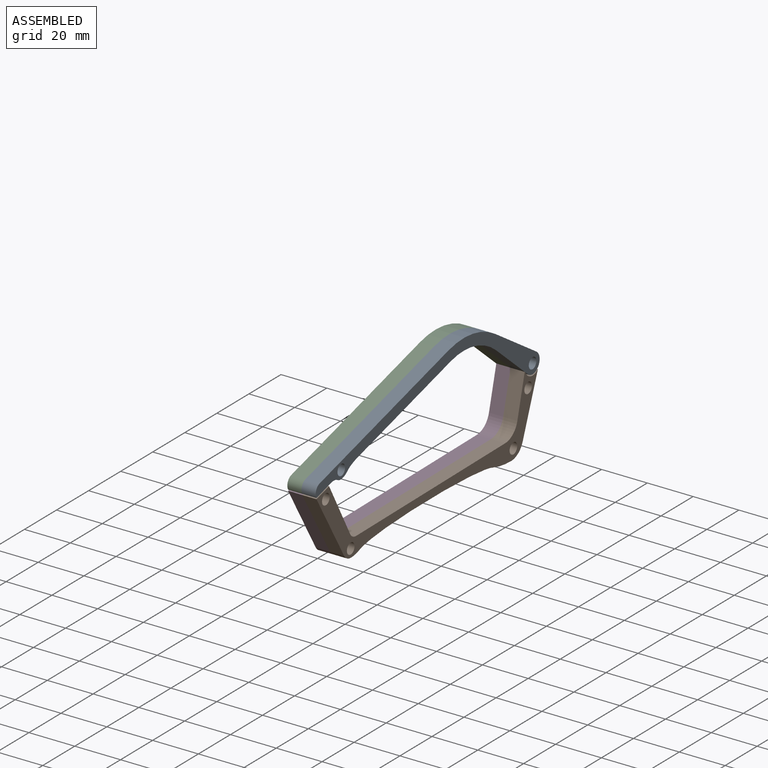
[diagram: assembled view]
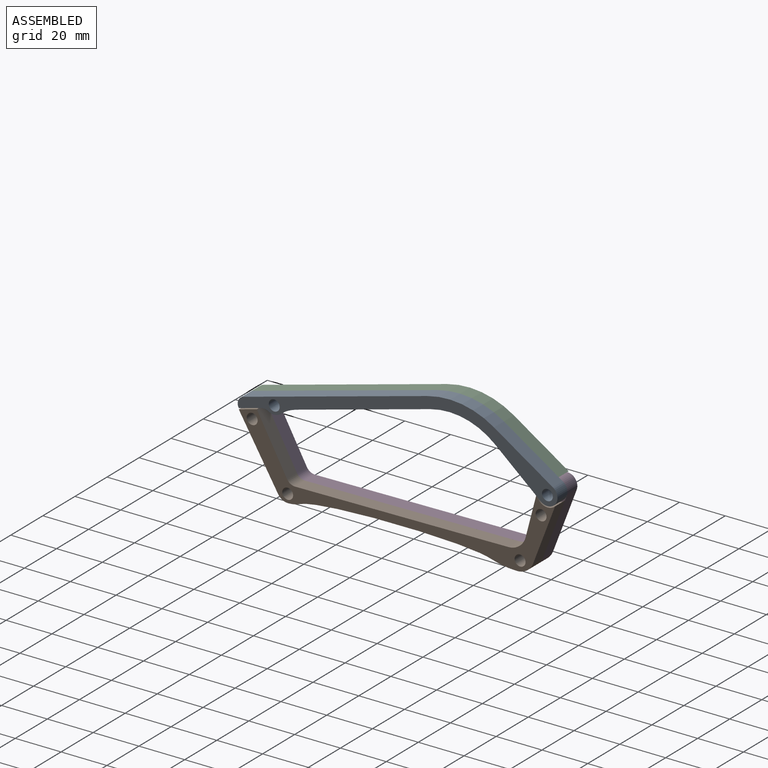
[diagram: assembled view, second angle]
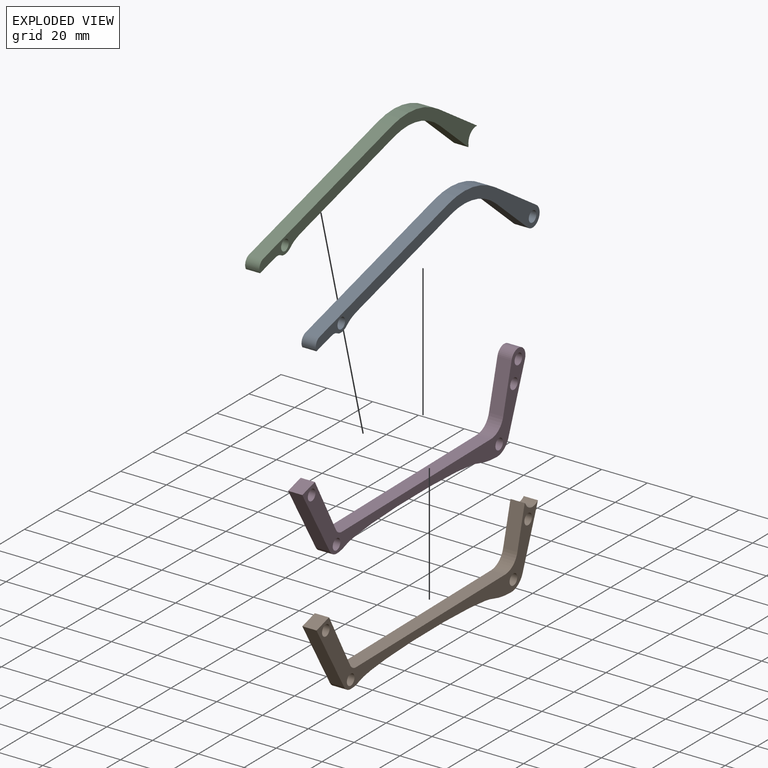
[diagram: exploded view]
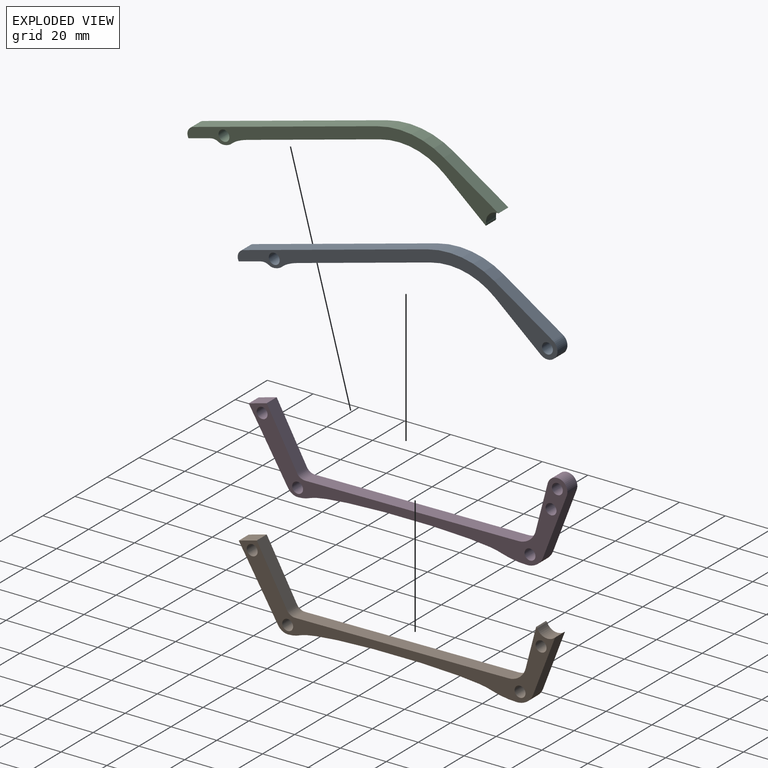
[diagram: exploded view, second angle]
ASSEMBLY  parts=4 mates=3
PART A: 14 faces, bbox 6.2x139.7x30.5 mm
  f0: plane 20.01x17.08mm, normal (0,-0.65,-0.76), area 163.1mm2, adj f1,f10,f12,f13
  f1: cylinder r=4.38mm len=8.06mm, axis (-1,0,0), area 88.9mm2, adj f0,f2,f12,f13
  f2: plane 25.78x16.7mm, normal (0,0.54,0.84), area 190.5mm2, adj f1,f3,f12,f13
  f3: cylinder r=35.98mm len=29.11mm, axis (-1,0,0), area 188.1mm2, adj f2,f4,f12,f13
  f4: plane 80.27x22.08mm, normal (0,-0.27,0.96), area 516.1mm2, adj f3,f5,f12,f13
  f5: cylinder r=3.4mm len=6.2mm, axis (-1,0,0), area 38.8mm2, adj f4,f6,f12,f13
  f6: plane 8.98x6.2mm, normal (0,0.27,-0.96), area 57.7mm2, adj f5,f7,f12,f13
  f7: extruded ~17.21x6.2mm, area 115.7mm2, adj f6,f8,f12,f13
  f8: plane 57.42x15.79mm, normal (0,0.27,-0.96), area 369.2mm2, adj f7,f10,f12,f13
  f9: cylinder r=2.38mm len=6.2mm, axis (-1,0,0), area 92.8mm2, adj f12,f13
  f10: cylinder r=30.98mm len=28.33mm, axis (-1,0,0), area 187.3mm2, adj f0,f8,f12,f13
  f11: cylinder r=2.38mm len=6.2mm, axis (-1,0,0), area 92.8mm2, adj f12,f13
  f12: plane 139.66x30.55mm, normal (1,0,0), area 779.8mm2, adj f0,f1,f2,f3,f4,f5,f6,f7
  f13: plane 139.66x30.55mm, normal (-1,0,0), area 779.8mm2, adj f0,f1,f2,f3,f4,f5,f6,f7
PART B: 21 faces, bbox 6.2x138.1x33.5 mm
  f0: plane 7.86x6.2mm, normal (0,-0.27,0.96), area 50.6mm2, adj f1,f18,f19,f20
  f1: plane 28.85x17.18mm, normal (0,-0.86,-0.51), area 208.2mm2, adj f0,f2,f19,f20
  f2: cylinder r=5mm len=6.2mm, axis (-1,0,0), area 32mm2, adj f1,f3,f19,f20
  f3: cylinder r=13.93mm len=6.2mm, axis (-1,0,0), area 36.4mm2, adj f2,f4,f19,f20
  f4: extruded ~83.01x6.2mm, area 517.1mm2, adj f3,f5,f19,f20
  f5: cylinder r=37.65mm len=11.29mm, axis (-1,0,0), area 71.1mm2, adj f4,f6,f19,f20
  f6: cylinder r=7.61mm len=7.11mm, axis (-1,0,0), area 56.9mm2, adj f5,f7,f19,f20
  f7: plane 25.05x9.54mm, normal (0,0.93,-0.36), area 166.2mm2, adj f6,f8,f19,f20
  f8: cylinder r=4.88mm len=7.81mm, axis (-1,0,0), area 57.9mm2, adj f7,f9,f19,f20
  f9: plane 6.2x0.45mm, normal (0,0.65,0.76), area 3.7mm2, adj f8,f10,f19,f20
  f10: plane 17.62x6.2mm, normal (0,-0.97,0.25), area 112.9mm2, adj f9,f11,f19,f20
  f11: cylinder r=7.88mm len=7.54mm, axis (-1,0,0), area 63.8mm2, adj f10,f12,f19,f20
  f12: plane 93.11x6.2mm, normal (0,-0.01,1), area 577.3mm2, adj f11,f13,f19,f20
  f13: cylinder r=4.07mm len=6.2mm, axis (-1,0,0), area 27.2mm2, adj f12,f18,f19,f20
  f14: cylinder r=2.38mm len=6.2mm, axis (-1,0,0), area 92.8mm2, adj f19,f20
  f15: cylinder r=2.38mm len=6.2mm, axis (-1,0,0), area 92.8mm2, adj f19,f20
  f16: cylinder r=2.38mm len=6.2mm, axis (-1,0,0), area 92.8mm2, adj f19,f20
  f17: cylinder r=2.38mm len=6.2mm, axis (-1,0,0), area 92.8mm2, adj f19,f20
  f18: plane 23.97x13.17mm, normal (0,0.88,0.48), area 169.6mm2, adj f0,f13,f19,f20
  f19: plane 138.13x33.46mm, normal (1,0,0), area 876.2mm2, adj f0,f1,f2,f3,f4,f5,f6,f7
  f20: plane 138.13x33.46mm, normal (-1,0,0), area 876.2mm2, adj f0,f1,f2,f3,f4,f5,f6,f7
PART C: 14 faces, bbox 6.2x135.9x28.4 mm
  f0: cylinder r=3.4mm len=6.2mm, axis (1,0,0), area 38.8mm2, adj f1,f11,f12,f13
  f1: plane 8.98x6.2mm, normal (0,0.27,-0.96), area 57.7mm2, adj f0,f2,f12,f13
  f2: extruded ~17.21x6.2mm, area 115.7mm2, adj f1,f3,f12,f13
  f3: plane 57.42x15.79mm, normal (0,0.27,-0.96), area 369.2mm2, adj f2,f4,f12,f13
  f4: cylinder r=30.98mm len=28.33mm, axis (1,0,0), area 187.3mm2, adj f3,f5,f12,f13
  f5: plane 17.92x15.3mm, normal (0,-0.65,-0.76), area 146.1mm2, adj f4,f6,f12,f13
  f6: plane 6.2x0.57mm, normal (0,0.97,-0.25), area 3.7mm2, adj f5,f7,f12,f13
  f7: cylinder r=4.88mm len=6.2mm, axis (1,0,0), area 57.2mm2, adj f6,f8,f12,f13
  f8: plane 23.98x15.53mm, normal (0,0.54,0.84), area 177.1mm2, adj f7,f9,f12,f13
  f9: cylinder r=35.98mm len=29.11mm, axis (1,0,0), area 188.1mm2, adj f8,f11,f12,f13
  f10: cylinder r=2.38mm len=6.2mm, axis (1,0,0), area 92.8mm2, adj f12,f13
  f11: plane 80.27x22.08mm, normal (0,-0.27,0.96), area 516.1mm2, adj f0,f9,f12,f13
  f12: plane 135.85x28.39mm, normal (-1,0,0), area 731.6mm2, adj f0,f1,f2,f3,f4,f5,f6,f7
  f13: plane 135.85x28.39mm, normal (1,0,0), area 731.6mm2, adj f0,f1,f2,f3,f4,f5,f6,f7
PART D: 21 faces, bbox 6.2x139.2x37.9 mm
  f0: plane 27.06x10.3mm, normal (0,0.93,-0.36), area 179.5mm2, adj f1,f17,f19,f20
  f1: cylinder r=4.38mm len=8.62mm, axis (1,0,0), area 88.3mm2, adj f0,f2,f19,f20
  f2: plane 20.28x6.2mm, normal (0,-0.97,0.25), area 129.9mm2, adj f1,f3,f19,f20
  f3: cylinder r=7.88mm len=7.54mm, axis (1,0,0), area 63.8mm2, adj f2,f4,f19,f20
  f4: plane 93.11x6.2mm, normal (0,-0.01,1), area 577.3mm2, adj f3,f5,f19,f20
  f5: cylinder r=4.07mm len=6.2mm, axis (1,0,0), area 27.2mm2, adj f4,f6,f19,f20
  f6: plane 23.97x13.17mm, normal (0,0.88,0.48), area 169.6mm2, adj f5,f7,f19,f20
  f7: plane 7.86x6.2mm, normal (0,-0.27,0.96), area 50.6mm2, adj f6,f8,f19,f20
  f8: plane 28.85x17.18mm, normal (0,-0.86,-0.51), area 208.2mm2, adj f7,f9,f19,f20
  f9: cylinder r=5mm len=6.2mm, axis (1,0,0), area 32mm2, adj f8,f10,f19,f20
  f10: cylinder r=13.93mm len=6.2mm, axis (1,0,0), area 36.4mm2, adj f9,f11,f19,f20
  f11: extruded ~83.01x6.2mm, area 517.1mm2, adj f10,f12,f19,f20
  f12: cylinder r=37.65mm len=11.29mm, axis (1,0,0), area 71.1mm2, adj f11,f17,f19,f20
  f13: cylinder r=2.38mm len=6.2mm, axis (1,0,0), area 92.8mm2, adj f19,f20
  f14: cylinder r=2.38mm len=6.2mm, axis (1,0,0), area 92.8mm2, adj f19,f20
  f15: cylinder r=2.38mm len=6.2mm, axis (1,0,0), area 92.8mm2, adj f19,f20
  f16: cylinder r=2.38mm len=6.2mm, axis (1,0,0), area 92.8mm2, adj f19,f20
  f17: cylinder r=7.61mm len=7.11mm, axis (1,0,0), area 56.9mm2, adj f0,f12,f19,f20
  f18: cylinder r=2.38mm len=6.2mm, axis (1,0,0), area 92.8mm2, adj f19,f20
  f19: plane 139.18x37.9mm, normal (-1,0,0), area 924.4mm2, adj f0,f1,f2,f3,f4,f5,f6,f7
  f20: plane 139.18x37.9mm, normal (1,0,0), area 924.4mm2, adj f0,f1,f2,f3,f4,f5,f6,f7
PLACE A rot(axis=(-1,0,0),0.2deg) t=(9.8,0.13,-18.34)mm
PLACE B t=(9.8,0.26,-18.59)mm fixed
PLACE C rot(axis=(-1,0,0),0.2deg) t=(9.8,0.13,-18.34)mm
PLACE D t=(9.8,0.26,-18.59)mm
MATE fastened B.f12 <-> D.f4  axis (0,-0.01,1) through (9.8,2.01,-10.68)mm
MATE fastened C.f11 <-> A.f4  axis (0,-0.26,0.97) through (9.8,-26.98,29.11)mm
MATE revolute D.f1 <-> A.f1  axis (1,0,0) through (9.8,65.61,14.93)mm
